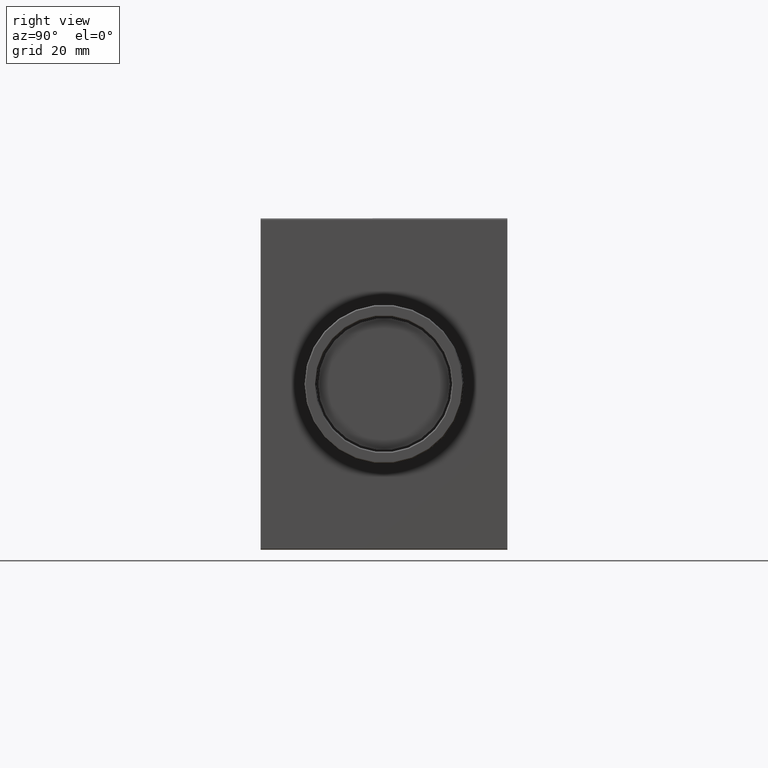
[diagram: clean part render]
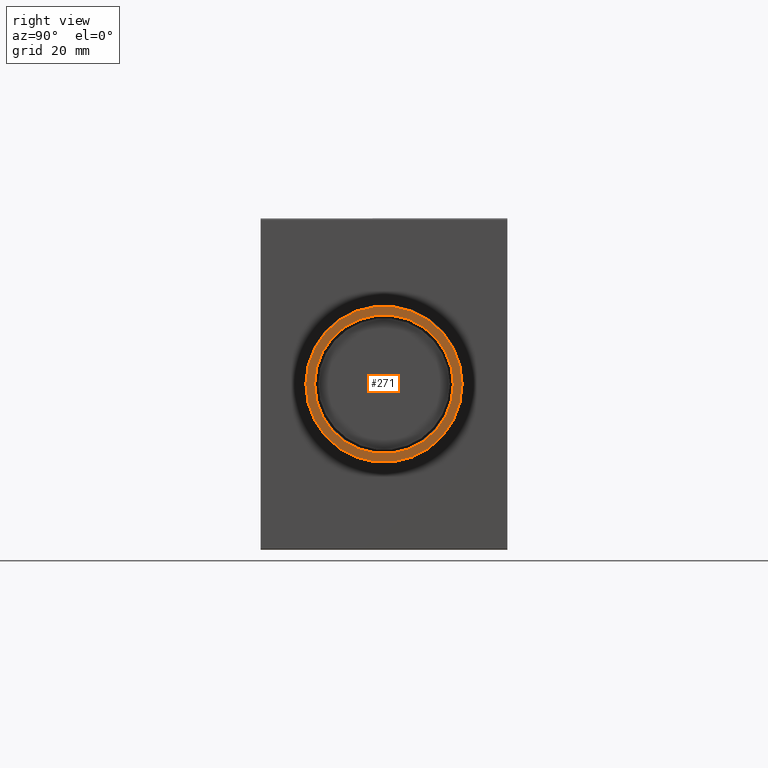
[diagram: same view with one face highlighted and labeled with its STEP entity id]
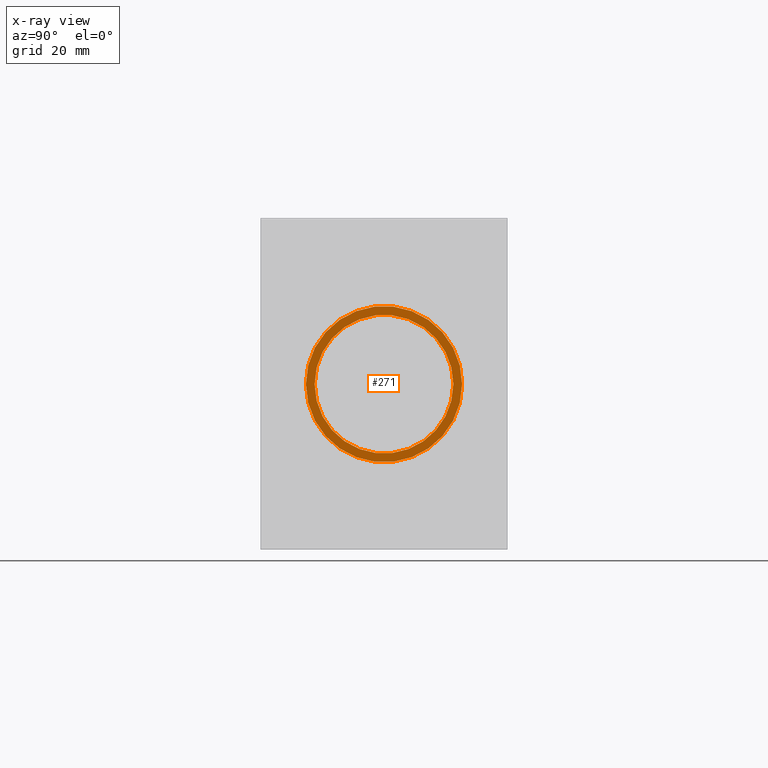
[diagram: x-ray of the same camera — body ghosted, the highlighted face saturated]
A machine part, right view. The second image highlights one B-rep face of the part: STEP entity #271.
The next image is the same camera in x-ray: the body ghosted, the highlighted face saturated — about 0% of this face is hidden behind the body in this view.
In plain terms, the highlighted planar face has unit normal (1, 0, 0).
Its self-contained STEP definition (entity closure, byte-faithful):
#240=CARTESIAN_POINT('',(10.748486254077104,14.218314320504648,-3.490128E-015));
#241=VERTEX_POINT('',#240);
#242=CARTESIAN_POINT('',(10.748486254077106,-0.031685679495352,0.0));
#243=DIRECTION('',(-1.0,0.0,0.0));
#244=DIRECTION('',(0.0,-1.0,0.0));
#245=AXIS2_PLACEMENT_3D('',#242,#243,#244);
#246=CIRCLE('',#245,14.250000000000000);
#247=EDGE_CURVE('',#241,#241,#246,.T.);
#252=CARTESIAN_POINT('',(10.748486254077104,13.418314320504653,0.0));
#253=DIRECTION('',(1.0,0.0,0.0));
#254=DIRECTION('',(0.0,0.0,-1.0));
#255=AXIS2_PLACEMENT_3D('',#252,#253,#254);
#256=PLANE('',#255);
#257=ORIENTED_EDGE('',*,*,#247,.F.);
#258=EDGE_LOOP('',(#257));
#259=FACE_OUTER_BOUND('',#258,.T.);
#260=CARTESIAN_POINT('',(10.748486254077104,12.618314320504648,0.0));
#261=VERTEX_POINT('',#260);
#262=CARTESIAN_POINT('',(10.748486254077106,-0.031685679495352,0.0));
#263=DIRECTION('',(1.0,0.0,0.0));
#264=DIRECTION('',(0.0,-1.0,0.0));
#265=AXIS2_PLACEMENT_3D('',#262,#263,#264);
#266=CIRCLE('',#265,12.650000000000002);
#267=EDGE_CURVE('',#261,#261,#266,.T.);
#268=ORIENTED_EDGE('',*,*,#267,.F.);
#269=EDGE_LOOP('',(#268));
#270=FACE_BOUND('',#269,.T.);
#271=ADVANCED_FACE('',(#259,#270),#256,.T.);